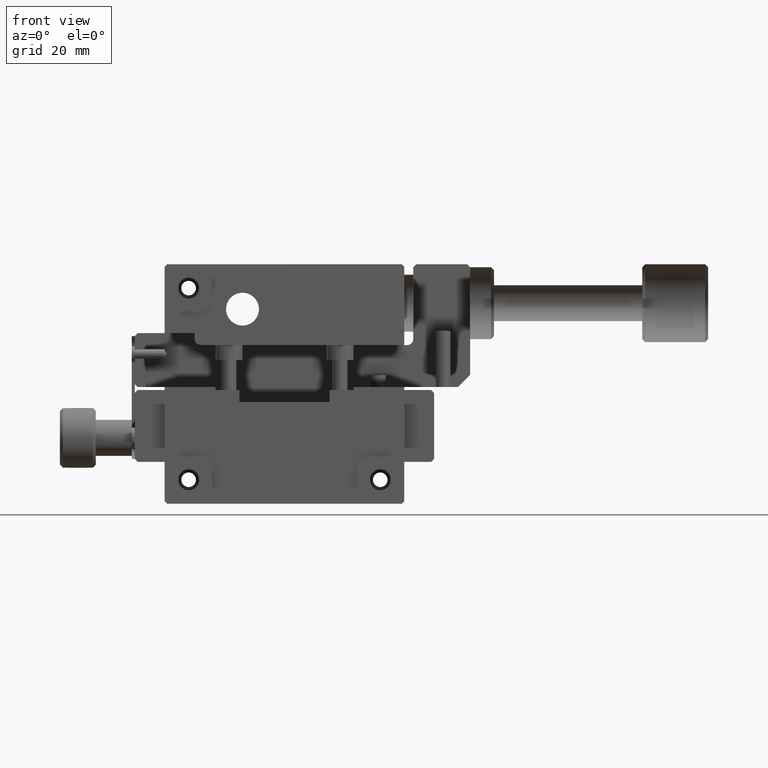
[diagram: clean part render]
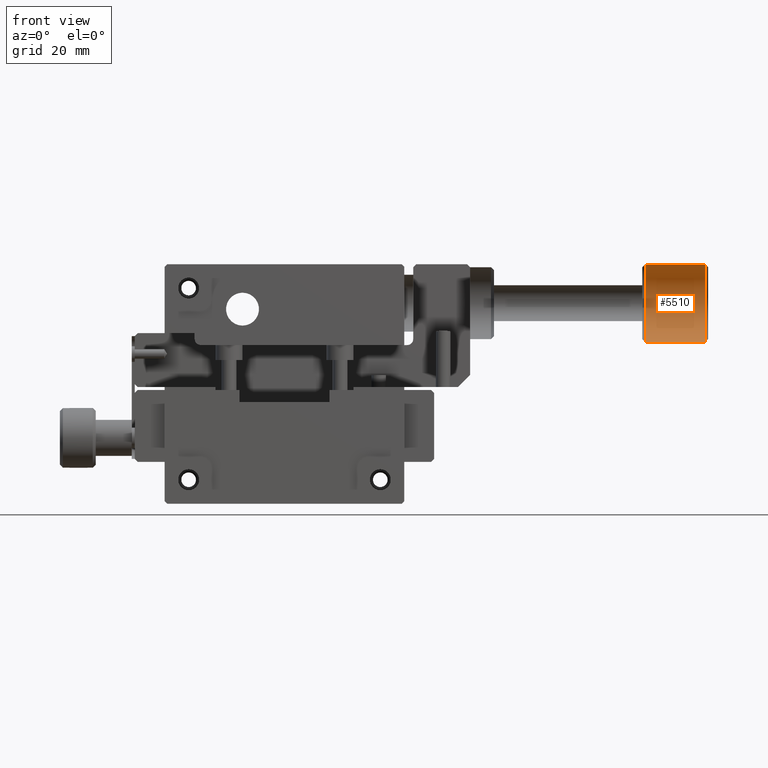
[diagram: same view with one face highlighted and labeled with its STEP entity id]
A machine part, front view. The second image highlights one B-rep face of the part: STEP entity #5510.
In plain terms, the highlighted cylindrical surface (bore or boss wall) has radius 6.5 mm, axis along (1, 0, 0).
Its self-contained STEP definition (entity closure, byte-faithful):
#731 = CIRCLE ( 'NONE', #7224, 6.499999999976806997 ) ;
#1386 = CARTESIAN_POINT ( 'NONE',  ( 80.24999999997817213, 13.00000000000000178, -6.500000000000000888 ) ) ;
#2815 = DIRECTION ( 'NONE',  ( -1.000000000000000000, -0.000000000000000000, -0.000000000000000000 ) ) ;
#3012 = CYLINDRICAL_SURFACE ( 'NONE', #9648, 6.500000000000000888 ) ;
#3487 = CIRCLE ( 'NONE', #5878, 6.500000000000000888 ) ;
#3682 = EDGE_CURVE ( 'NONE', #9953, #9953, #3487, .T. ) ;
#4724 = FACE_OUTER_BOUND ( 'NONE', #10191, .T. ) ;
#5055 = DIRECTION ( 'NONE',  ( 0.000000000000000000, 0.000000000000000000, -1.000000000000000000 ) ) ;
#5471 = CARTESIAN_POINT ( 'NONE',  ( 90.75000000000000000, 13.00000000000000178, -6.500000000000000888 ) ) ;
#5510 = ADVANCED_FACE ( 'NONE', ( #4724, #6125 ), #3012, .F. ) ;
#5867 = CARTESIAN_POINT ( 'NONE',  ( 90.25000000000000000, 13.00000000000000178, -6.500000000000000888 ) ) ;
#5878 = AXIS2_PLACEMENT_3D ( 'NONE', #5867, #2815, #5055 ) ;
#6125 = FACE_OUTER_BOUND ( 'NONE', #8142, .T. ) ;
#6270 = DIRECTION ( 'NONE',  ( 0.000000000000000000, 0.000000000000000000, -1.000000000000000000 ) ) ;
#6984 = DIRECTION ( 'NONE',  ( 1.000000000000000000, 0.000000000000000000, 0.000000000000000000 ) ) ;
#7014 = DIRECTION ( 'NONE',  ( -1.000000000000000000, -0.000000000000000000, -0.000000000000000000 ) ) ;
#7224 = AXIS2_PLACEMENT_3D ( 'NONE', #1386, #7014, #6270 ) ;
#7443 = VERTEX_POINT ( 'NONE', #8092 ) ;
#7848 = EDGE_CURVE ( 'NONE', #7443, #7443, #731, .T. ) ;
#7880 = ORIENTED_EDGE ( 'NONE', *, *, #7848, .T. ) ;
#8092 = CARTESIAN_POINT ( 'NONE',  ( 80.24999999997817213, 13.00000000000000178, -12.99999999997680789 ) ) ;
#8142 = EDGE_LOOP ( 'NONE', ( #10393 ) ) ;
#8748 = DIRECTION ( 'NONE',  ( 0.000000000000000000, 0.000000000000000000, -1.000000000000000000 ) ) ;
#9648 = AXIS2_PLACEMENT_3D ( 'NONE', #5471, #6984, #8748 ) ;
#9904 = CARTESIAN_POINT ( 'NONE',  ( 90.25000000000000000, 13.00000000000000178, -13.00000000000000178 ) ) ;
#9953 = VERTEX_POINT ( 'NONE', #9904 ) ;
#10191 = EDGE_LOOP ( 'NONE', ( #7880 ) ) ;
#10393 = ORIENTED_EDGE ( 'NONE', *, *, #3682, .F. ) ;